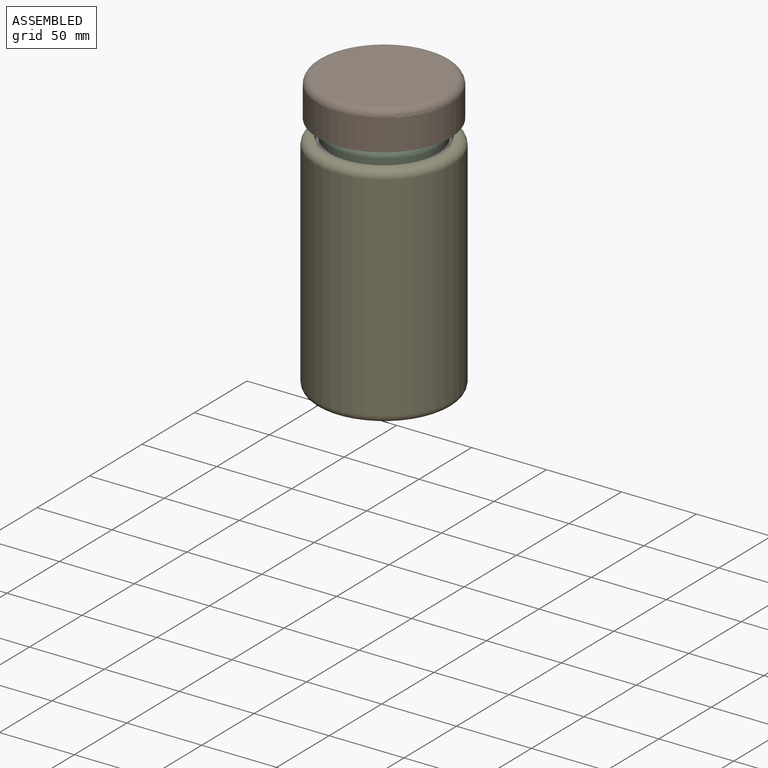
[diagram: assembled view]
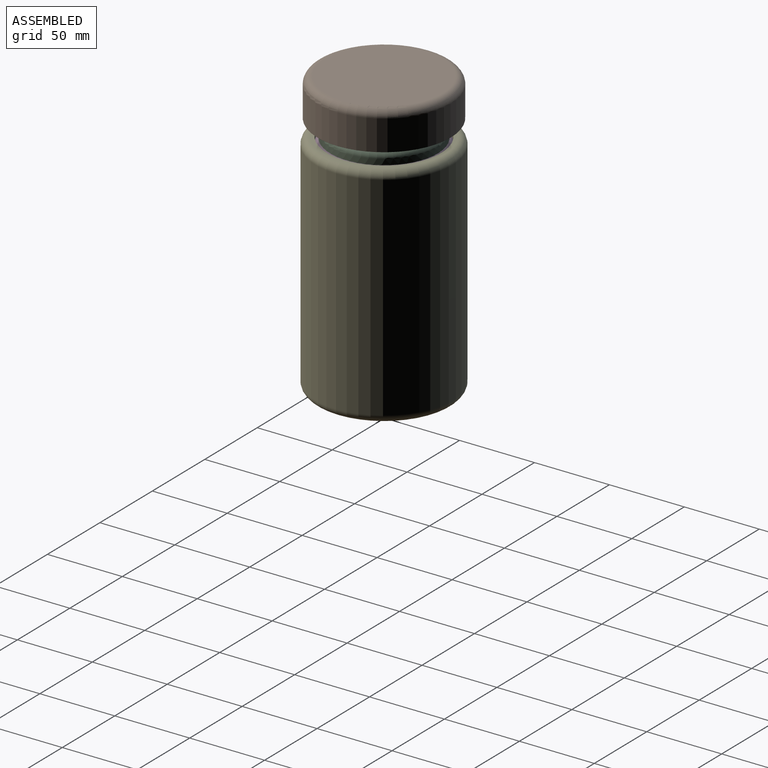
[diagram: assembled view, second angle]
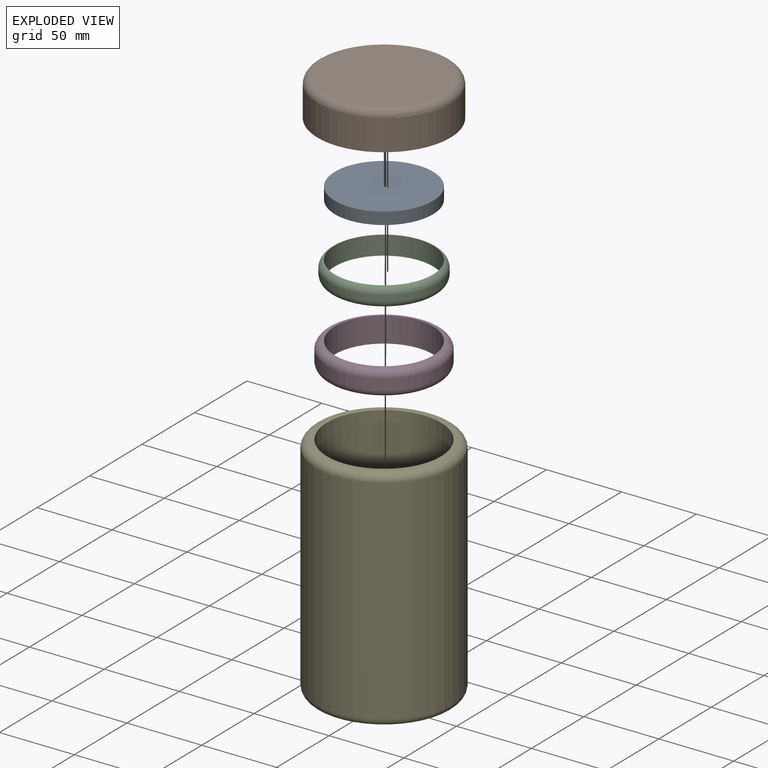
[diagram: exploded view]
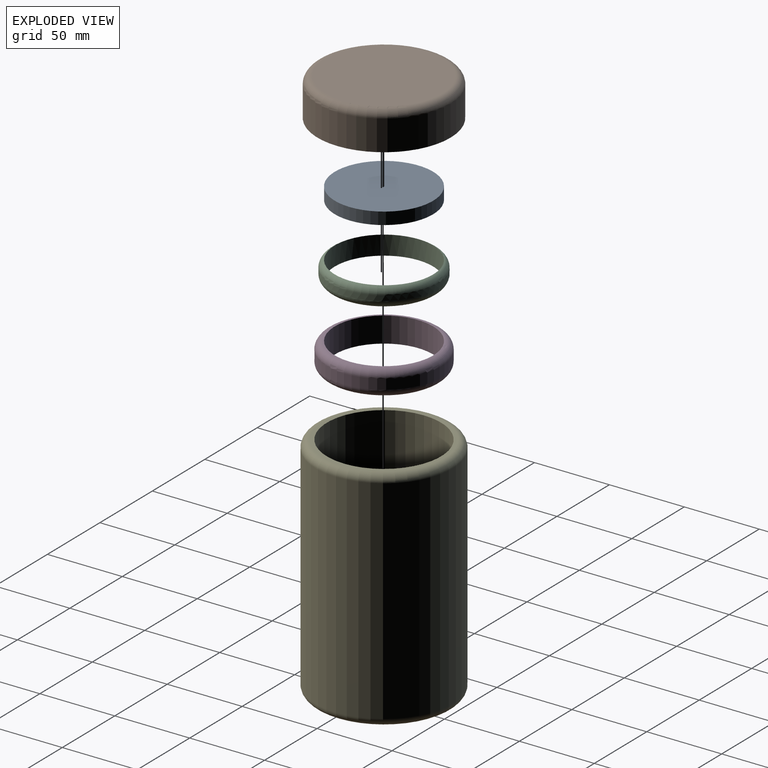
[diagram: exploded view, second angle]
ASSEMBLY  parts=5 mates=4
PART A: 3 faces, bbox 65.6x65.6x8.1 mm
  f0: cylinder r=32.82mm len=65.63mm, axis (0,0,-1), area 1675.9mm2, adj f1,f2
  f1: plane 65.63x65.63mm, normal (0,0,1), area 3383.3mm2, adj f0
  f2: plane 65.63x65.63mm, normal (0,0,-1), area 3383.3mm2, adj f0
PART B: 6 faces, bbox 96.2x96.2x25.4 mm
  f0: cylinder r=44.45mm len=88.9mm, axis (0,0,-1), area 5675.1mm2, adj f2,f5
  f1: plane 78.74x78.74mm, normal (0,0,1), area 4869.5mm2, adj f5
  f2: plane 88.9x88.9mm, normal (0,0,-1), area 2160.5mm2, adj f0,f3
  f3: cylinder r=35.89mm len=71.78mm, axis (0,0,-1), area 4868.6mm2, adj f2,f4
  f4: plane 71.78x71.78mm, normal (0,0,-1), area 4046.7mm2, adj f3
  f5: torus R=39.37mm, axis (0,0,1), area 2136.1mm2, adj f0,f1
PART C: 4 faces, bbox 77.7x77.7x13.5 mm
  f0: cylinder r=32.82mm len=65.63mm, axis (0,0,-1), area 2618.7mm2, adj f2,f3
  f1: cylinder r=35.89mm len=71.78mm, axis (0,0,-1), area 758.9mm2, adj f2,f3
  f2: torus R=30.81mm, axis (0,0,-1), area 1294.7mm2, adj f0,f1
  f3: torus R=30.81mm, axis (0,0,1), area 1294.7mm2, adj f0,f1
PART D: 6 faces, bbox 82.5x82.5x16.9 mm
  f0: cylinder r=32.81mm len=65.63mm, axis (0,0,-1), area 3487.8mm2, adj f2,f3
  f1: cylinder r=38.1mm len=76.2mm, axis (0,0,-1), area 1617.4mm2, adj f4,f5
  f2: plane 66.04x66.04mm, normal (0,0,1), area 42.6mm2, adj f0,f5
  f3: plane 66.04x66.04mm, normal (0,0,-1), area 42.6mm2, adj f0,f4
  f4: torus R=33.02mm, axis (0,0,1), area 1817.7mm2, adj f1,f3
  f5: torus R=33.02mm, axis (0,0,1), area 1817.7mm2, adj f1,f2
PART E: 7 faces, bbox 99x99x152.4 mm
  f0: cylinder r=38.1mm len=149.27mm, axis (0,0,-1), area 35734.5mm2, adj f2,f4
  f1: cylinder r=45.72mm len=142.24mm, axis (0,0,-1), area 40860.9mm2, adj f5,f6
  f2: plane 81.28x81.28mm, normal (0,0,1), area 628.3mm2, adj f0,f6
  f3: plane 81.28x81.28mm, normal (0,0,-1), area 5188.7mm2, adj f5
  f4: plane 76.2x76.2mm, normal (0,0,1), area 4560.4mm2, adj f0
  f5: torus R=40.64mm, axis (0,0,1), area 2199.7mm2, adj f1,f3
  f6: torus R=40.64mm, axis (0,0,1), area 2199.7mm2, adj f1,f2
PLACE A rot(axis=(0.33,-0.03,0.94),0deg) t=(-3.46,-42.74,173.92)mm
PLACE B rot(axis=(0.33,-0.03,0.94),0deg) t=(-3.46,-42.74,163.76)mm
PLACE C rot(axis=(0.33,-0.03,0.94),0deg) t=(-3.46,-42.74,147.7)mm
PLACE D rot(axis=(0.33,-0.03,0.94),0deg) t=(-3.46,-42.74,135.86)mm
PLACE E rot(axis=(0.33,-0.03,0.94),0deg) t=(-3.46,-42.74,0.38)mm
MATE fastened B.f0 <-> A.f0  axis (0,0,-1) through (-3.46,-42.74,173.92)mm
MATE cylindrical B.f3 <-> C.f1  axis (0,0,-1) through (-3.46,-42.74,163.76)mm
MATE fastened E.f1 <-> D.f1  axis (0,0,1) through (-3.46,-42.74,147.7)mm
MATE fastened C.f0 <-> D.f1  axis (0,0,1) through (-3.46,-42.74,147.7)mm
